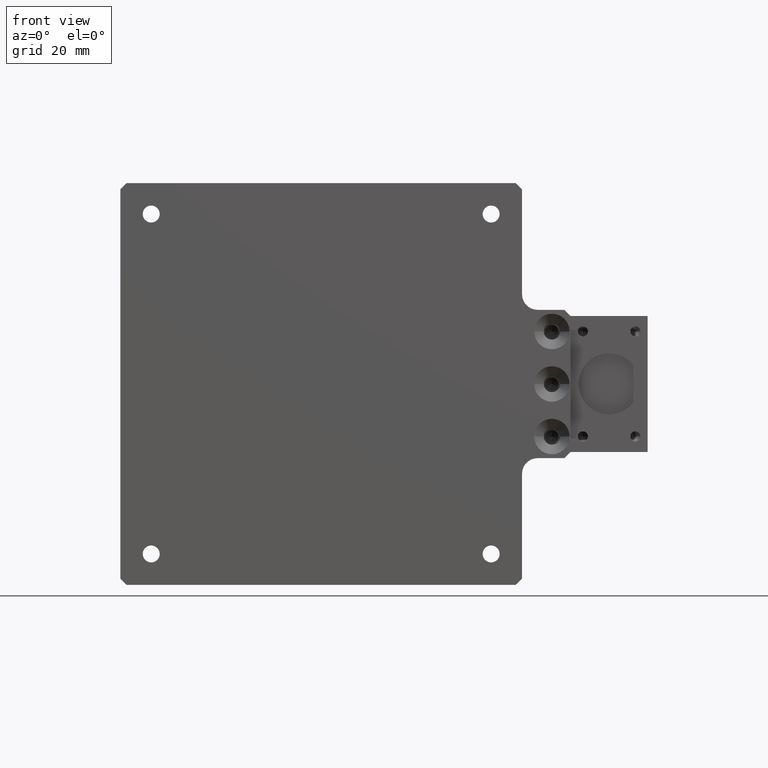
[diagram: clean part render]
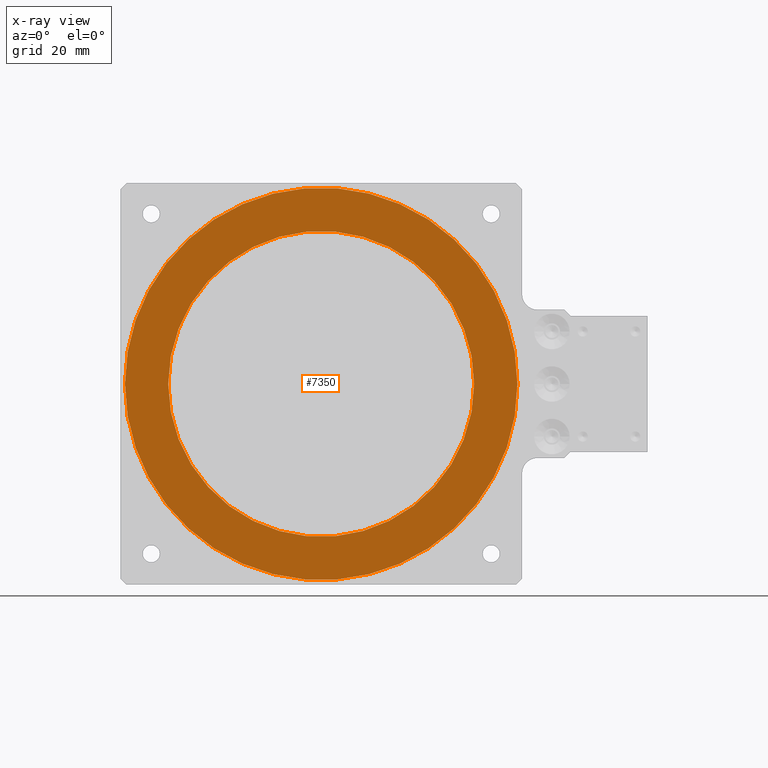
[diagram: x-ray — body ghosted, one internal face saturated and labeled with its STEP entity id]
A machine part, front view, then the same camera in x-ray: the body is ghosted and one INTERNAL B-rep face — a face not visible from any outside direction — is saturated and labeled: STEP entity #7350.
In plain terms, the highlighted planar face has unit normal (0, 1, 0).
Its self-contained STEP definition (entity closure, byte-faithful):
#7225=CARTESIAN_POINT('',(0.E0,0.E0,0.E0));
#7226=DIRECTION('',(0.E0,0.E0,-1.E0));
#7227=DIRECTION('',(1.E0,0.E0,0.E0));
#7228=AXIS2_PLACEMENT_3D('',#7225,#7226,#7227);
#7233=CARTESIAN_POINT('',(0.E0,0.E0,0.E0));
#7234=DIRECTION('',(0.E0,0.E0,-1.E0));
#7235=DIRECTION('',(-1.E0,0.E0,0.E0));
#7236=AXIS2_PLACEMENT_3D('',#7233,#7234,#7235);
#7241=CARTESIAN_POINT('',(0.E0,0.E0,0.E0));
#7242=DIRECTION('',(0.E0,0.E0,1.E0));
#7243=DIRECTION('',(1.E0,0.E0,0.E0));
#7244=AXIS2_PLACEMENT_3D('',#7241,#7242,#7243);
#7249=CARTESIAN_POINT('',(0.E0,0.E0,0.E0));
#7250=DIRECTION('',(0.E0,0.E0,1.E0));
#7251=DIRECTION('',(-1.E0,0.E0,0.E0));
#7252=AXIS2_PLACEMENT_3D('',#7249,#7250,#7251);
#7317=CARTESIAN_POINT('',(4.95E1,0.E0,0.E0));
#7318=CARTESIAN_POINT('',(-4.95E1,0.E0,0.E0));
#7319=VERTEX_POINT('',#7317);
#7320=VERTEX_POINT('',#7318);
#7321=CARTESIAN_POINT('',(6.35E1,0.E0,0.E0));
#7322=CARTESIAN_POINT('',(-6.35E1,1.555301434917E-14,0.E0));
#7323=VERTEX_POINT('',#7321);
#7324=VERTEX_POINT('',#7322);
#7333=CARTESIAN_POINT('',(0.E0,0.E0,0.E0));
#7334=DIRECTION('',(0.E0,0.E0,1.E0));
#7335=DIRECTION('',(1.E0,0.E0,0.E0));
#7336=AXIS2_PLACEMENT_3D('',#7333,#7334,#7335);
#7337=PLANE('',#7336);
#7339=ORIENTED_EDGE('',*,*,#7338,.T.);
#7341=ORIENTED_EDGE('',*,*,#7340,.T.);
#7342=EDGE_LOOP('',(#7339,#7341));
#7343=FACE_OUTER_BOUND('',#7342,.F.);
#7345=ORIENTED_EDGE('',*,*,#7344,.T.);
#7347=ORIENTED_EDGE('',*,*,#7346,.T.);
#7348=EDGE_LOOP('',(#7345,#7347));
#7349=FACE_BOUND('',#7348,.F.);
#7229=CIRCLE('',#7228,4.95E1);
#7237=CIRCLE('',#7236,4.95E1);
#7245=CIRCLE('',#7244,6.35E1);
#7253=CIRCLE('',#7252,6.35E1);
#7338=EDGE_CURVE('',#7323,#7324,#7245,.T.);
#7340=EDGE_CURVE('',#7324,#7323,#7253,.T.);
#7344=EDGE_CURVE('',#7319,#7320,#7229,.T.);
#7346=EDGE_CURVE('',#7320,#7319,#7237,.T.);
#7350=ADVANCED_FACE('',(#7343,#7349),#7337,.F.);